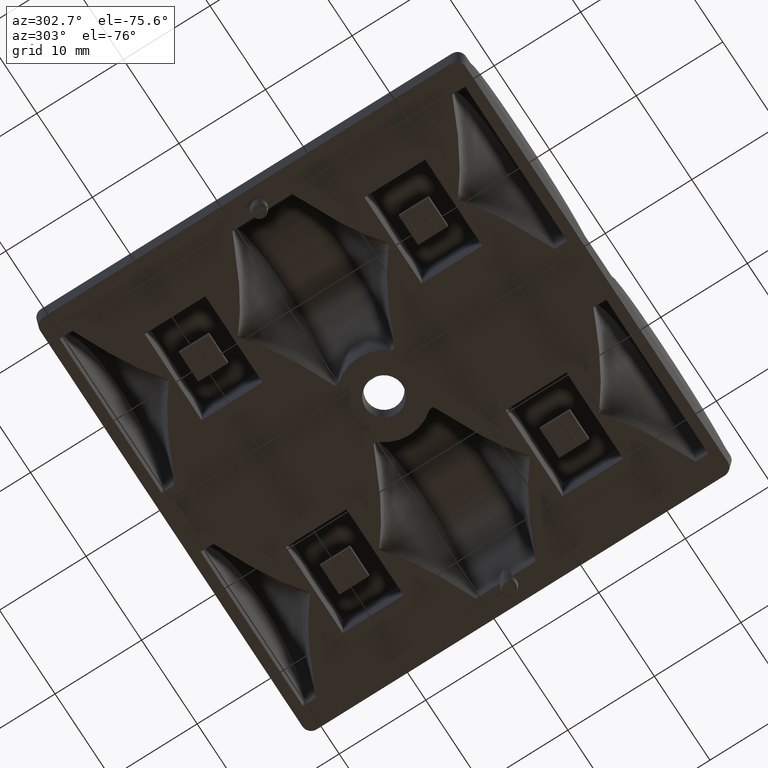
[diagram: clean part render]
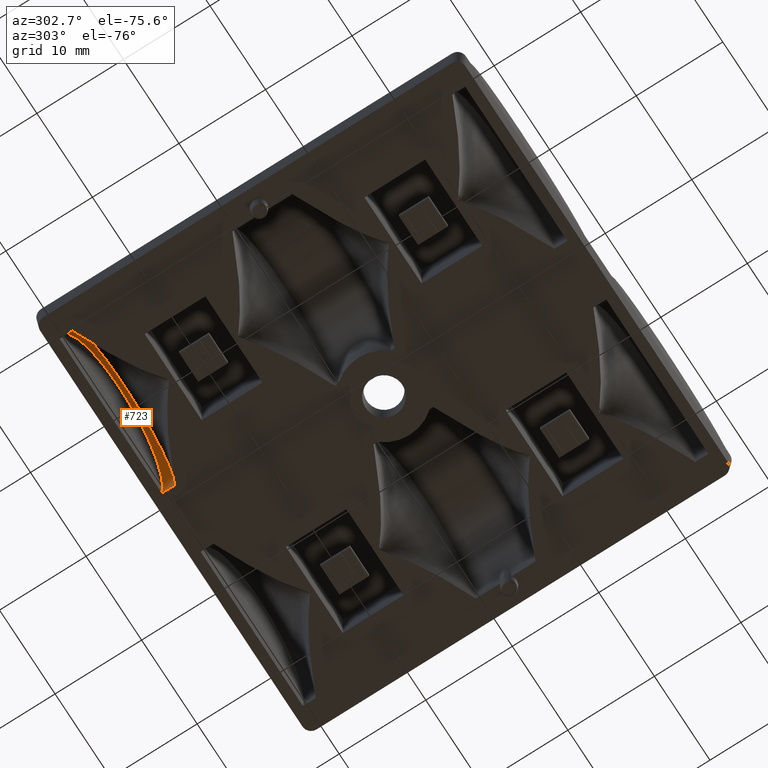
[diagram: same view with one face highlighted and labeled with its STEP entity id]
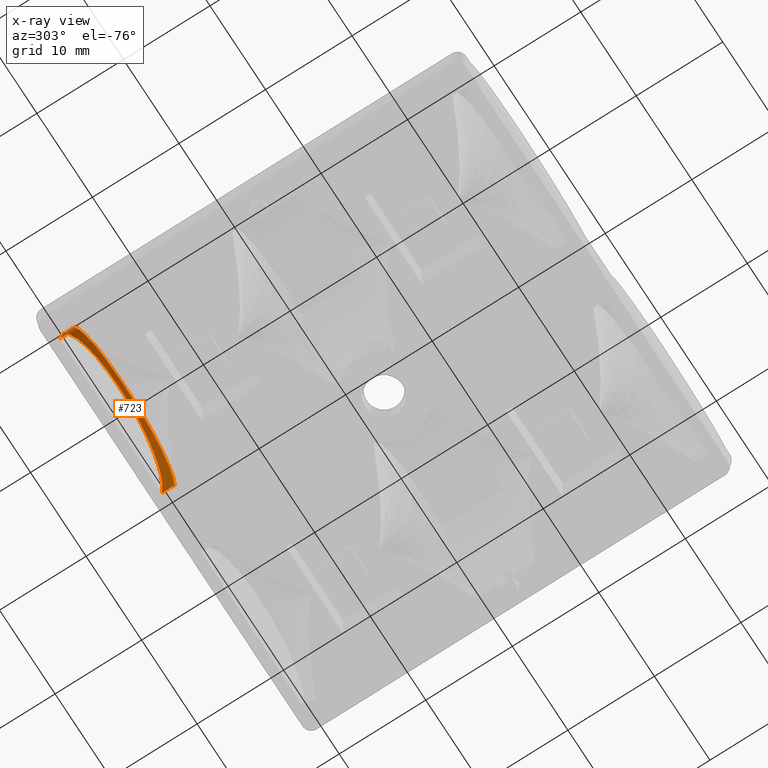
[diagram: x-ray of the same camera — body ghosted, the highlighted face saturated]
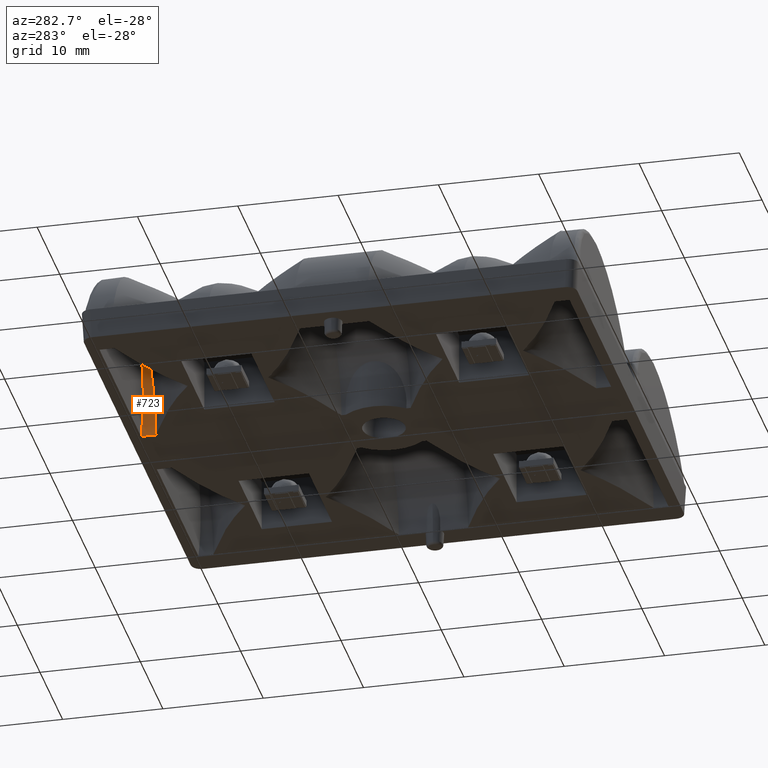
[diagram: same view with one face highlighted and labeled with its STEP entity id]
A machine part, auxiliary view. The second image highlights one B-rep face of the part: STEP entity #723.
The next image is the same camera in x-ray: the body ghosted, the highlighted face saturated — about 0% of this face is hidden behind the body in this view.
A second angle (auxiliary view) of the same face is appended — the face is thin or edge-on in the first view.
In plain terms, the highlighted cylindrical surface (partial cylindrical patch) has radius 9.2 mm, axis along (0, -1, -0).
Its self-contained STEP definition (entity closure, byte-faithful):
#61=(
BOUNDED_CURVE()
B_SPLINE_CURVE(3,(#8761,#8762,#8763,#8764),.UNSPECIFIED.,.F.,.F.)
B_SPLINE_CURVE_WITH_KNOTS((4,4),(0.,1.),.UNSPECIFIED.)
CURVE()
GEOMETRIC_REPRESENTATION_ITEM()
RATIONAL_B_SPLINE_CURVE((1.,0.333333333333337,0.333333333333337,1.))
REPRESENTATION_ITEM('')
);
#723=ADVANCED_FACE('',(#1066),#971,.F.);
#971=CYLINDRICAL_SURFACE('',#5578,9.2);
#1066=FACE_OUTER_BOUND('',#1367,.T.);
#1367=EDGE_LOOP('',(#2099,#2100,#2101,#2102));
#2099=ORIENTED_EDGE('',*,*,#4036,.T.);
#2100=ORIENTED_EDGE('',*,*,#3808,.F.);
#2101=ORIENTED_EDGE('',*,*,#4037,.T.);
#2102=ORIENTED_EDGE('',*,*,#3806,.F.);
#3250=VERTEX_POINT('',#7423);
#3251=VERTEX_POINT('',#7429);
#3252=VERTEX_POINT('',#7431);
#3253=VERTEX_POINT('',#7433);
#3806=EDGE_CURVE('',#3251,#3252,#4692,.T.);
#3808=EDGE_CURVE('',#3253,#3250,#4694,.T.);
#4036=EDGE_CURVE('',#3251,#3250,#4519,.T.);
#4037=EDGE_CURVE('',#3253,#3252,#61,.T.);
#4519=CIRCLE('',#5577,9.2);
#4692=LINE('',#7430,#5110);
#4694=LINE('',#7434,#5112);
#5110=VECTOR('',#6038,1.);
#5112=VECTOR('',#6040,1.);
#5577=AXIS2_PLACEMENT_3D('',#8760,#6252,#6253);
#5578=AXIS2_PLACEMENT_3D('',#8765,#6254,#6255);
#6038=DIRECTION('',(0.,1.,1.22464679914735E-16));
#6040=DIRECTION('',(0.,-1.,0.));
#6252=DIRECTION('',(0.,-1.,0.));
#6253=DIRECTION('',(0.,0.,-1.));
#6254=DIRECTION('',(0.,-1.,-1.22464679914735E-16));
#6255=DIRECTION('',(0.,1.88556899562696E-16,-1.));
#7423=CARTESIAN_POINT('',(-9.2,9.25,-1.38900000001737));
#7429=CARTESIAN_POINT('',(9.2,9.25,-1.38900000001743));
#7430=CARTESIAN_POINT('',(9.2,12.302,-1.38900000001743));
#7431=CARTESIAN_POINT('',(9.2,10.7298730314904,-1.38900000001744));
#7433=CARTESIAN_POINT('',(-9.2,10.7298730314904,-1.38900000001736));
#7434=CARTESIAN_POINT('',(-9.2,-12.7,-1.38900000002815));
#8760=CARTESIAN_POINT('',(2.32798615637146E-15,9.25,-1.3890000000174));
#8761=CARTESIAN_POINT('',(-9.2,10.7298730314904,-1.38900000001736));
#8762=CARTESIAN_POINT('',(-9.19999999999991,8.77012696850962,17.0109999999825));
#8763=CARTESIAN_POINT('',(9.19999999999992,8.77012696850962,17.0109999999825));
#8764=CARTESIAN_POINT('',(9.2,10.7298730314904,-1.38900000001736));
#8765=CARTESIAN_POINT('',(0.,12.302,-1.3890000000174));